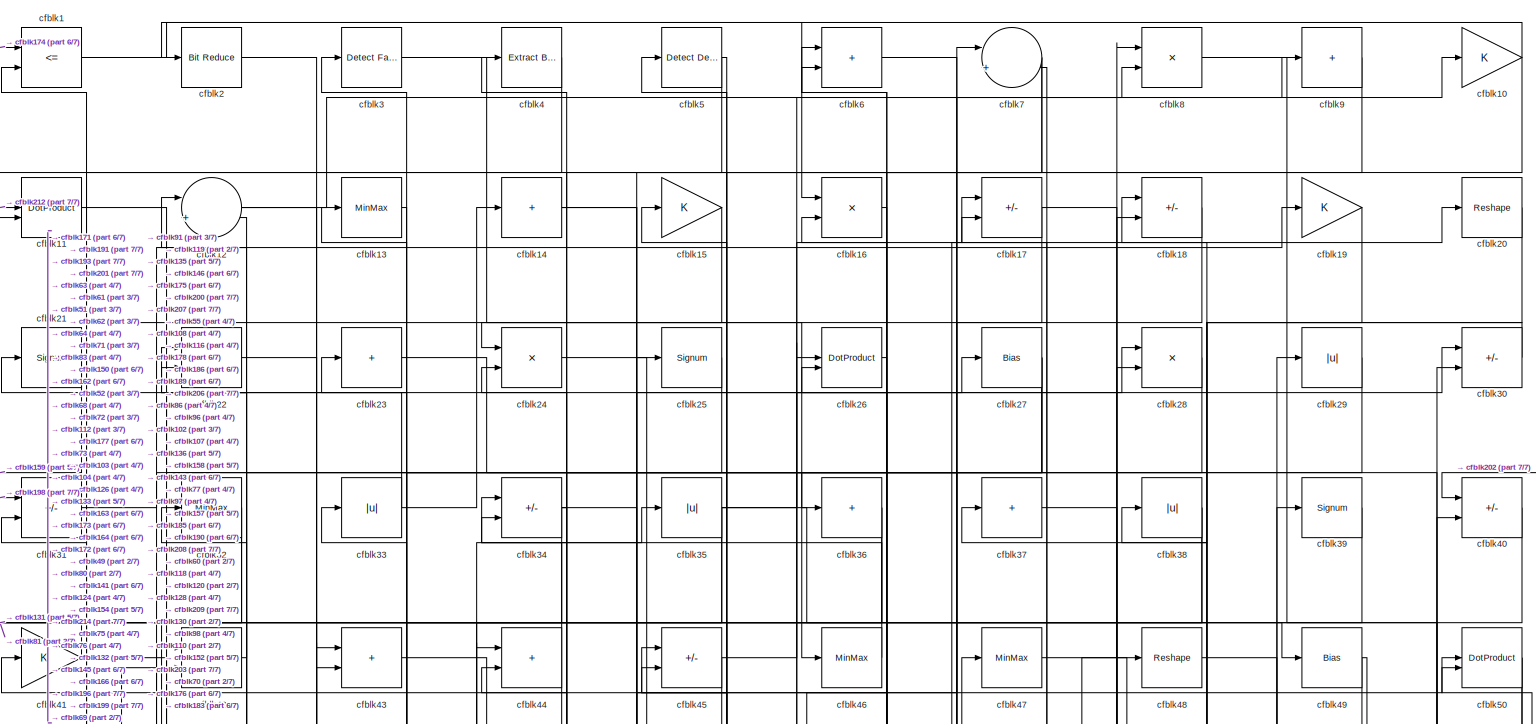
[diagram: root canvas - part 1/7, full width, top band]
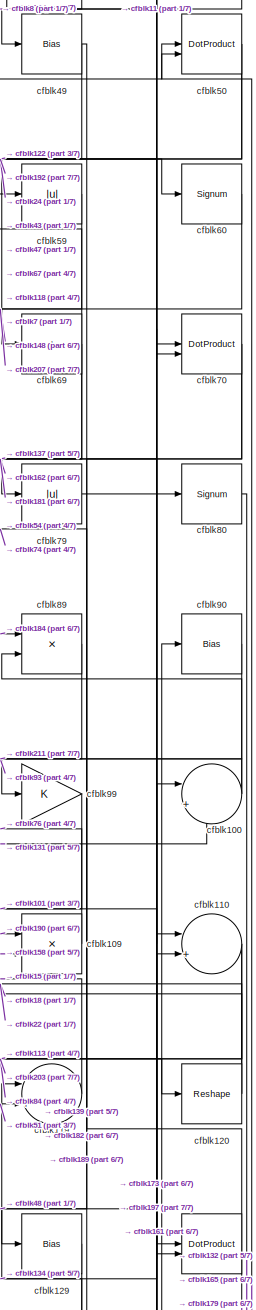
[diagram: root canvas - part 2/7, middle right region]
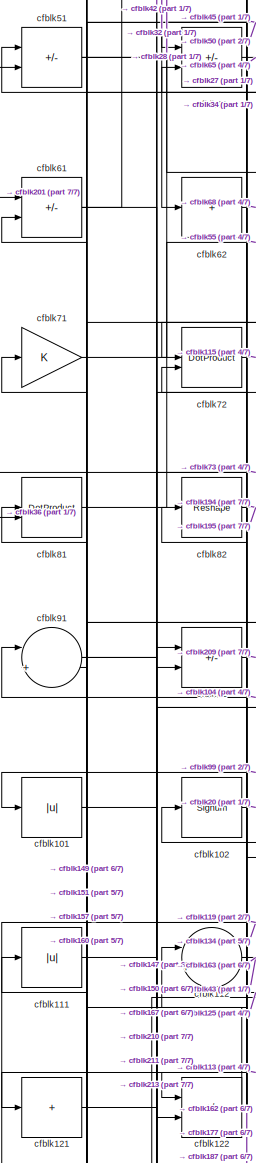
[diagram: root canvas - part 3/7, middle left region]
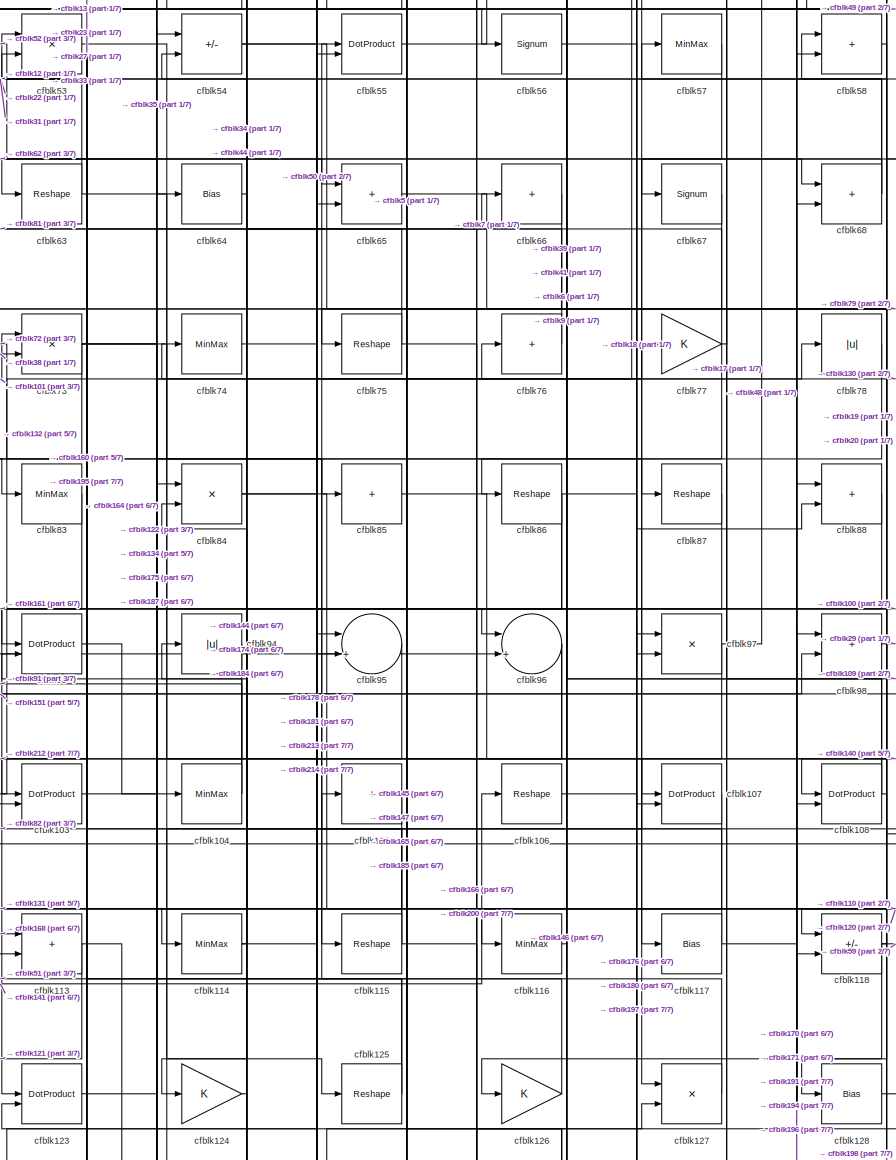
[diagram: root canvas - part 4/7, central region]
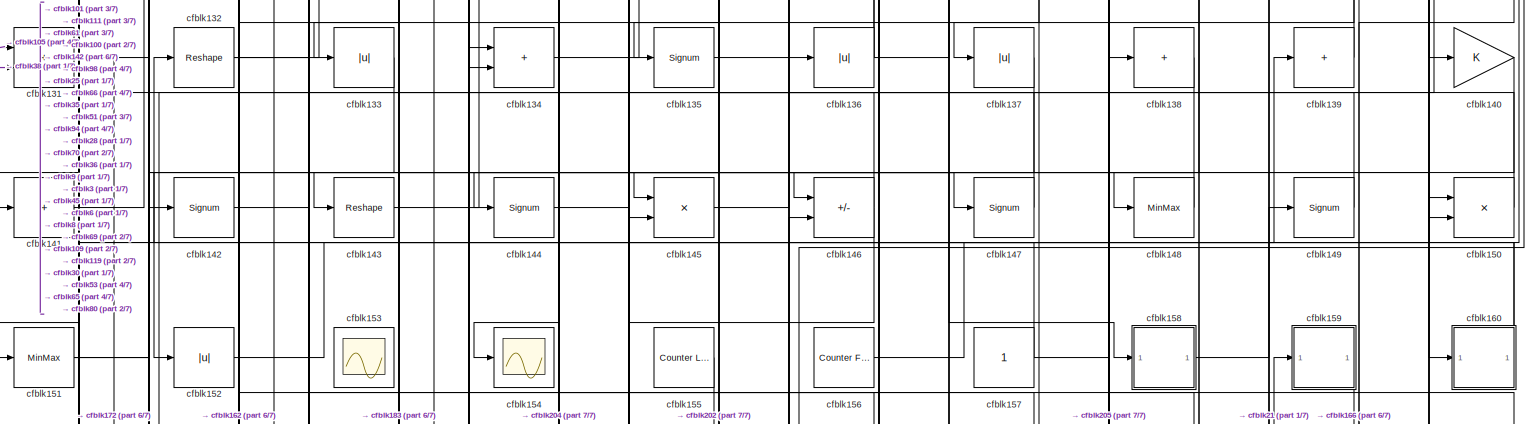
[diagram: root canvas - part 5/7, full width, middle band]
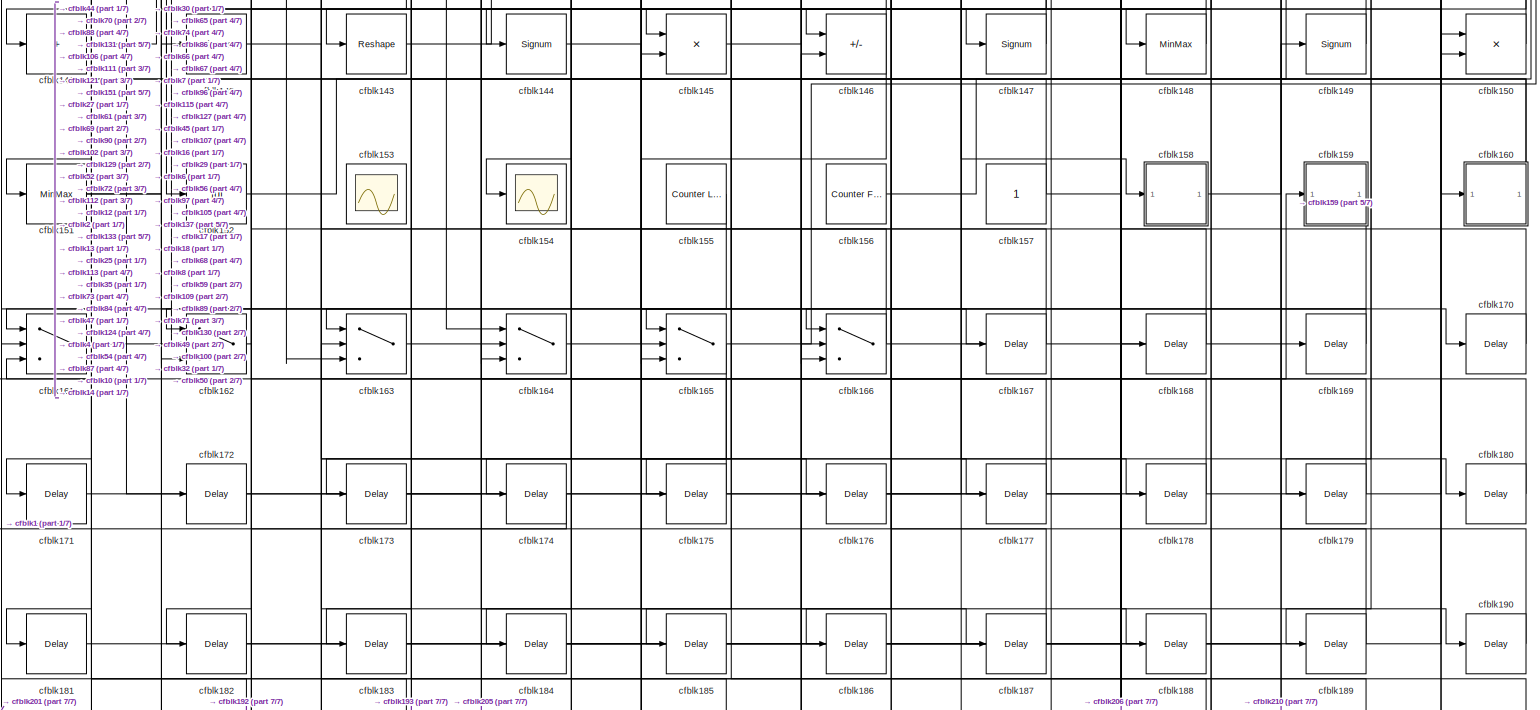
[diagram: root canvas - part 6/7, full width, bottom band]
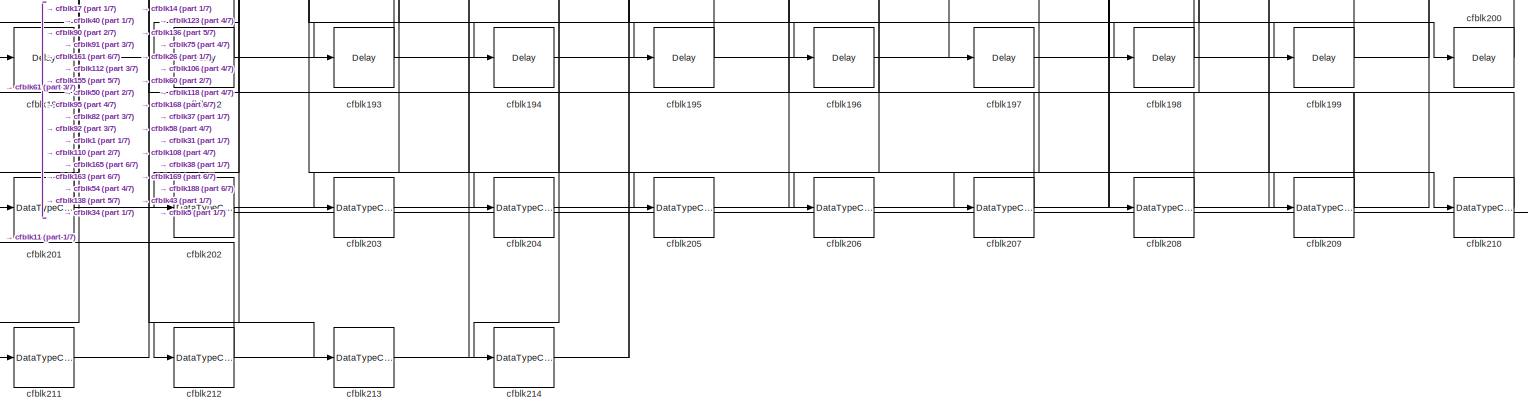
[diagram: root canvas - part 7/7, full width, bottom band]
MODEL slx_d8c4fedc67f1
KIND model
CONFIG AbsTol = auto
CONFIG EnableMultiTasking = off
CONFIG FixedStep = auto
CONFIG MaxStep = auto
CONFIG MinStep = auto
CONFIG RelTol = 1e-3
CONFIG SampleTimeConstraint = Unconstrained
CONFIG SolverName = VariableStepAuto
CONFIG StartTime = 0.0
CONFIG StopTime = 10.0
BLOCK [RelationalOperator] cfblk1
  InputSameDT = off
  Operator = <=
  OutDataTypeStr = boolean
BLOCK [Gain] cfblk10
BLOCK [Sum] cfblk100
  Inputs = |++
BLOCK [Abs] cfblk101
  SaturateOnIntegerOverflow = off
BLOCK [Signum] cfblk102
BLOCK [DotProduct] cfblk103
  OutDataTypeStr = Inherit: Inherit via internal rule
BLOCK [MinMax] cfblk104
BLOCK [Sum] cfblk105
  IconShape = rectangular
  Inputs = +
BLOCK [Reshape] cfblk106
BLOCK [DotProduct] cfblk107
  OutDataTypeStr = Inherit: Inherit via internal rule
BLOCK [DotProduct] cfblk108
  OutDataTypeStr = Inherit: Inherit via internal rule
BLOCK [Product] cfblk109
  Inputs = */
  RndMeth = Zero
  SaturateOnIntegerOverflow = on
BLOCK [DotProduct] cfblk11
  OutDataTypeStr = Inherit: Inherit via internal rule
BLOCK [Sum] cfblk110
  Inputs = |++
BLOCK [Abs] cfblk111
  SaturateOnIntegerOverflow = off
BLOCK [Sum] cfblk112
  Inputs = |++
BLOCK [Sum] cfblk113
  IconShape = rectangular
BLOCK [MinMax] cfblk114
BLOCK [Reshape] cfblk115
BLOCK [MinMax] cfblk116
BLOCK [Bias] cfblk117
  Bias = 0.0
  SaturateOnIntegerOverflow = off
BLOCK [Sum] cfblk118
  IconShape = rectangular
  Inputs = +-
BLOCK [Sum] cfblk119
  Inputs = |++
BLOCK [Sum] cfblk12
  Inputs = |++
BLOCK [Reshape] cfblk120
BLOCK [Sum] cfblk121
  IconShape = rectangular
  Inputs = +
BLOCK [Sum] cfblk122
  IconShape = rectangular
  Inputs = +-
BLOCK [DotProduct] cfblk123
  OutDataTypeStr = Inherit: Inherit via internal rule
BLOCK [Gain] cfblk124
BLOCK [Reshape] cfblk125
BLOCK [Gain] cfblk126
BLOCK [Product] cfblk127
  Inputs = */
  RndMeth = Zero
  SaturateOnIntegerOverflow = on
BLOCK [Bias] cfblk128
  Bias = 0.0
  SaturateOnIntegerOverflow = off
BLOCK [Bias] cfblk129
  Bias = 0.0
  SaturateOnIntegerOverflow = off
BLOCK [MinMax] cfblk13
BLOCK [DotProduct] cfblk130
  OutDataTypeStr = Inherit: Inherit via internal rule
BLOCK [Sum] cfblk131
  IconShape = rectangular
BLOCK [Reshape] cfblk132
BLOCK [Abs] cfblk133
  SaturateOnIntegerOverflow = off
BLOCK [Sum] cfblk134
  IconShape = rectangular
BLOCK [Signum] cfblk135
BLOCK [Abs] cfblk136
  SaturateOnIntegerOverflow = off
BLOCK [Abs] cfblk137
  SaturateOnIntegerOverflow = off
BLOCK [Sum] cfblk138
  IconShape = rectangular
  Inputs = +
BLOCK [Sum] cfblk139
  IconShape = rectangular
  Inputs = +
BLOCK [Sum] cfblk14
  IconShape = rectangular
  Inputs = +
BLOCK [Gain] cfblk140
BLOCK [Sum] cfblk141
  IconShape = rectangular
  Inputs = +
BLOCK [Signum] cfblk142
BLOCK [Reshape] cfblk143
BLOCK [Signum] cfblk144
BLOCK [Product] cfblk145
  Inputs = */
  RndMeth = Zero
  SaturateOnIntegerOverflow = on
BLOCK [Sum] cfblk146
  IconShape = rectangular
  Inputs = +-
BLOCK [Signum] cfblk147
BLOCK [MinMax] cfblk148
BLOCK [Signum] cfblk149
BLOCK [Gain] cfblk15
BLOCK [Product] cfblk150
  Inputs = */
  RndMeth = Zero
  SaturateOnIntegerOverflow = on
BLOCK [MinMax] cfblk151
BLOCK [Abs] cfblk152
  SaturateOnIntegerOverflow = off
BLOCK [Scope] cfblk153
  Floating = on
  NumInputPorts = 1
  ScopeSpecificationString = Simulink.scopes.TimeScopeBlockCfg('CurrentConfiguration', extmgr.ConfigurationSet(extmgr.Configuration('Core','General UI',true,'FigureColor',[0.156862745098039 0.156862745098039 0.156862745098039]),extmgr.Configuration('Core','Source UI',true),extmgr.Configuration('Sources','WiredSimulink',true,'DataLoggingVariableName','ScopeData1','DataLoggingSaveFormat','StructureWithTime','DataLoggingLimitDat...<+2713ch>
BLOCK [Scope] cfblk154
  Floating = off
  NumInputPorts = 1
  ScopeSpecificationString = Simulink.scopes.TimeScopeBlockCfg('CurrentConfiguration', extmgr.ConfigurationSet(extmgr.Configuration('Core','General UI',true),extmgr.Configuration('Core','Source UI',true),extmgr.Configuration('Sources','WiredSimulink',true,'DataLoggingVariableName','ScopeData2','DataLoggingSaveFormat','Array','DataLoggingLimitDataPoints',true,'DataLoggingDecimation','1'),extmgr.Configuration('Visuals','Time Do...<+868ch>
BLOCK [Reference] cfblk155  REF=hdlsllib/Sources/Counter
Limited
  SourceBlock = hdlsllib/Sources/Counter\nLimited
  SourceType = Counter Limited
BLOCK [Reference] cfblk156  REF=hdlsllib/Sources/Counter
Free-Running
  SourceBlock = hdlsllib/Sources/Counter\nFree-Running
  SourceType = Counter Free-Running
BLOCK [Constant] cfblk157
  SampleTime = -1
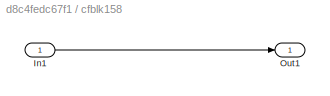
BLOCK [SubSystem] cfblk158
  LibrarySourceBlock = hdlsllib/Ports &\nSubsystems/Subsystem
BLOCK [Inport] cfblk158/In1
BLOCK [Outport] cfblk158/Out1
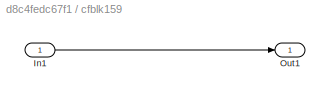
BLOCK [SubSystem] cfblk159
  LibrarySourceBlock = hdlsllib/Ports &\nSubsystems/Subsystem
BLOCK [Inport] cfblk159/In1
BLOCK [Outport] cfblk159/Out1
BLOCK [Product] cfblk16
  Inputs = */
  RndMeth = Zero
  SaturateOnIntegerOverflow = on
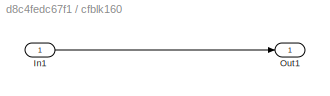
BLOCK [SubSystem] cfblk160
  LibrarySourceBlock = hdlsllib/Ports &\nSubsystems/Subsystem
BLOCK [Inport] cfblk160/In1
BLOCK [Outport] cfblk160/Out1
BLOCK [Switch] cfblk161
  InputSameDT = off
  SaturateOnIntegerOverflow = off
BLOCK [Switch] cfblk162
  InputSameDT = off
  SaturateOnIntegerOverflow = off
BLOCK [Switch] cfblk163
  InputSameDT = off
  SaturateOnIntegerOverflow = off
BLOCK [Switch] cfblk164
  InputSameDT = off
  SaturateOnIntegerOverflow = off
BLOCK [Switch] cfblk165
  InputSameDT = off
  SaturateOnIntegerOverflow = off
BLOCK [Switch] cfblk166
  InputSameDT = off
  SaturateOnIntegerOverflow = off
BLOCK [Delay] cfblk167
  InputPortMap = u0
  SampleTime = 1
BLOCK [Delay] cfblk168
  InputPortMap = u0
  SampleTime = 1
BLOCK [Delay] cfblk169
  InputPortMap = u0
  SampleTime = 1
BLOCK [Sum] cfblk17
  IconShape = rectangular
  Inputs = +-
BLOCK [Delay] cfblk170
  InputPortMap = u0
  SampleTime = 1
BLOCK [Delay] cfblk171
  InputPortMap = u0
  SampleTime = 1
BLOCK [Delay] cfblk172
  InputPortMap = u0
  SampleTime = 1
BLOCK [Delay] cfblk173
  InputPortMap = u0
  SampleTime = 1
BLOCK [Delay] cfblk174
  InputPortMap = u0
  SampleTime = 1
BLOCK [Delay] cfblk175
  InputPortMap = u0
  SampleTime = 1
BLOCK [Delay] cfblk176
  InputPortMap = u0
  SampleTime = 1
BLOCK [Delay] cfblk177
  InputPortMap = u0
  SampleTime = 1
BLOCK [Delay] cfblk178
  InputPortMap = u0
  SampleTime = 1
BLOCK [Delay] cfblk179
  InputPortMap = u0
  SampleTime = 1
BLOCK [Sum] cfblk18
  IconShape = rectangular
  Inputs = +-
BLOCK [Delay] cfblk180
  InputPortMap = u0
  SampleTime = 1
BLOCK [Delay] cfblk181
  InputPortMap = u0
  SampleTime = 1
BLOCK [Delay] cfblk182
  InputPortMap = u0
  SampleTime = 1
BLOCK [Delay] cfblk183
  InputPortMap = u0
  SampleTime = 1
BLOCK [Delay] cfblk184
  InputPortMap = u0
  SampleTime = 1
BLOCK [Delay] cfblk185
  InputPortMap = u0
  SampleTime = 1
BLOCK [Delay] cfblk186
  InputPortMap = u0
  SampleTime = 1
BLOCK [Delay] cfblk187
  InputPortMap = u0
  SampleTime = 1
BLOCK [Delay] cfblk188
  InputPortMap = u0
  SampleTime = 1
BLOCK [Delay] cfblk189
  InputPortMap = u0
  SampleTime = 1
BLOCK [Gain] cfblk19
BLOCK [Delay] cfblk190
  InputPortMap = u0
  SampleTime = 1
BLOCK [Delay] cfblk191
  InputPortMap = u0
  SampleTime = 1
BLOCK [Delay] cfblk192
  InputPortMap = u0
  SampleTime = 1
BLOCK [Delay] cfblk193
  InputPortMap = u0
  SampleTime = 1
BLOCK [Delay] cfblk194
  InputPortMap = u0
  SampleTime = 1
BLOCK [Delay] cfblk195
  InputPortMap = u0
  SampleTime = 1
BLOCK [Delay] cfblk196
  InputPortMap = u0
  SampleTime = 1
BLOCK [Delay] cfblk197
  InputPortMap = u0
  SampleTime = 1
BLOCK [Delay] cfblk198
  InputPortMap = u0
  SampleTime = 1
BLOCK [Delay] cfblk199
  InputPortMap = u0
  SampleTime = 1
BLOCK [Reference] cfblk2  REF=hdlsllib/Logic and Bit
Operations/Bit Reduce
  SourceBlock = hdlsllib/Logic and Bit\nOperations/Bit Reduce
  SourceType = Bit Reduce
BLOCK [Reshape] cfblk20
BLOCK [Delay] cfblk200
  InputPortMap = u0
  SampleTime = 1
BLOCK [DataTypeConversion] cfblk201
  RndMeth = Floor
  SaturateOnIntegerOverflow = off
BLOCK [DataTypeConversion] cfblk202
  OutDataTypeStr = uint8
  RndMeth = Floor
  SaturateOnIntegerOverflow = off
BLOCK [DataTypeConversion] cfblk203
  OutDataTypeStr = uint8
  RndMeth = Floor
  SaturateOnIntegerOverflow = off
BLOCK [DataTypeConversion] cfblk204
  OutDataTypeStr = uint8
  RndMeth = Floor
  SaturateOnIntegerOverflow = off
BLOCK [DataTypeConversion] cfblk205
  OutDataTypeStr = uint8
  RndMeth = Floor
  SaturateOnIntegerOverflow = off
BLOCK [DataTypeConversion] cfblk206
  OutDataTypeStr = uint8
  RndMeth = Floor
  SaturateOnIntegerOverflow = off
BLOCK [DataTypeConversion] cfblk207
  OutDataTypeStr = uint8
  RndMeth = Floor
  SaturateOnIntegerOverflow = off
BLOCK [DataTypeConversion] cfblk208
  OutDataTypeStr = uint8
  RndMeth = Floor
  SaturateOnIntegerOverflow = off
BLOCK [DataTypeConversion] cfblk209
  RndMeth = Floor
  SaturateOnIntegerOverflow = off
BLOCK [Signum] cfblk21
BLOCK [DataTypeConversion] cfblk210
  OutDataTypeStr = uint8
  RndMeth = Floor
  SaturateOnIntegerOverflow = off
BLOCK [DataTypeConversion] cfblk211
  OutDataTypeStr = uint8
  RndMeth = Floor
  SaturateOnIntegerOverflow = off
BLOCK [DataTypeConversion] cfblk212
  RndMeth = Floor
  SaturateOnIntegerOverflow = off
BLOCK [DataTypeConversion] cfblk213
  OutDataTypeStr = uint8
  RndMeth = Floor
  SaturateOnIntegerOverflow = off
BLOCK [DataTypeConversion] cfblk214
  OutDataTypeStr = uint8
  RndMeth = Floor
  SaturateOnIntegerOverflow = off
BLOCK [Product] cfblk22
  Inputs = */
  RndMeth = Zero
  SaturateOnIntegerOverflow = on
BLOCK [Sum] cfblk23
  IconShape = rectangular
  Inputs = +
BLOCK [Product] cfblk24
  Inputs = */
  RndMeth = Zero
  SaturateOnIntegerOverflow = on
BLOCK [Signum] cfblk25
BLOCK [DotProduct] cfblk26
  OutDataTypeStr = Inherit: Inherit via internal rule
BLOCK [Bias] cfblk27
  Bias = 0.0
  SaturateOnIntegerOverflow = off
BLOCK [Product] cfblk28
  Inputs = */
  RndMeth = Zero
  SaturateOnIntegerOverflow = on
BLOCK [Abs] cfblk29
  SaturateOnIntegerOverflow = off
BLOCK [Reference] cfblk3  REF=hdlsllib/Logic and Bit
Operations/Detect Fall
Negative
  SourceBlock = hdlsllib/Logic and Bit\nOperations/Detect Fall\nNegative
  SourceType = Detect Fall Negative
BLOCK [Sum] cfblk30
  IconShape = rectangular
  Inputs = +-
BLOCK [Sum] cfblk31
  IconShape = rectangular
  Inputs = +-
BLOCK [MinMax] cfblk32
BLOCK [Abs] cfblk33
  SaturateOnIntegerOverflow = off
BLOCK [Sum] cfblk34
  IconShape = rectangular
  Inputs = +-
BLOCK [Abs] cfblk35
  SaturateOnIntegerOverflow = off
BLOCK [Sum] cfblk36
  IconShape = rectangular
  Inputs = +
BLOCK [Sum] cfblk37
  IconShape = rectangular
  Inputs = +
BLOCK [Abs] cfblk38
  SaturateOnIntegerOverflow = off
BLOCK [Signum] cfblk39
BLOCK [Reference] cfblk4  REF=simulink/Logic and Bit
Operations/Extract Bits
  LibrarySourceBlock = hdlsllib/Logic and Bit\nOperations/Extract Bits
  SourceBlock = simulink/Logic and Bit\nOperations/Extract Bits
  SourceType = Extract Bits
BLOCK [Sum] cfblk40
  IconShape = rectangular
  Inputs = +-
BLOCK [Gain] cfblk41
BLOCK [Product] cfblk42
  Inputs = */
  RndMeth = Zero
  SaturateOnIntegerOverflow = on
BLOCK [Sum] cfblk43
  IconShape = rectangular
BLOCK [Sum] cfblk44
  IconShape = rectangular
BLOCK [Sum] cfblk45
  IconShape = rectangular
  Inputs = +-
BLOCK [MinMax] cfblk46
BLOCK [MinMax] cfblk47
BLOCK [Reshape] cfblk48
BLOCK [Bias] cfblk49
  Bias = 0.0
  SaturateOnIntegerOverflow = off
BLOCK [Reference] cfblk5  REF=simulink/Logic and Bit
Operations/Detect
Decrease
  LibrarySourceBlock = hdlsllib/Logic and Bit\nOperations/Detect\nDecrease
  SourceBlock = simulink/Logic and Bit\nOperations/Detect\nDecrease
  SourceType = Detect Decrease
BLOCK [DotProduct] cfblk50
  OutDataTypeStr = Inherit: Inherit via internal rule
BLOCK [Sum] cfblk51
  IconShape = rectangular
  Inputs = +-
BLOCK [Sum] cfblk52
  IconShape = rectangular
  Inputs = +-
BLOCK [Product] cfblk53
  Inputs = */
  RndMeth = Zero
  SaturateOnIntegerOverflow = on
BLOCK [Sum] cfblk54
  IconShape = rectangular
  Inputs = +-
BLOCK [DotProduct] cfblk55
  OutDataTypeStr = Inherit: Inherit via internal rule
BLOCK [Signum] cfblk56
BLOCK [MinMax] cfblk57
BLOCK [Sum] cfblk58
  IconShape = rectangular
BLOCK [Abs] cfblk59
  SaturateOnIntegerOverflow = off
BLOCK [Sum] cfblk6
  IconShape = rectangular
BLOCK [Signum] cfblk60
BLOCK [Sum] cfblk61
  IconShape = rectangular
  Inputs = +-
BLOCK [Sum] cfblk62
  IconShape = rectangular
  Inputs = +
BLOCK [Reshape] cfblk63
BLOCK [Bias] cfblk64
  Bias = 0.0
  SaturateOnIntegerOverflow = off
BLOCK [Sum] cfblk65
  IconShape = rectangular
BLOCK [Sum] cfblk66
  IconShape = rectangular
  Inputs = +
BLOCK [Signum] cfblk67
BLOCK [Sum] cfblk68
  IconShape = rectangular
BLOCK [Sum] cfblk69
  IconShape = rectangular
  Inputs = +
BLOCK [Sum] cfblk7
  Inputs = |++
BLOCK [DotProduct] cfblk70
  OutDataTypeStr = Inherit: Inherit via internal rule
BLOCK [Gain] cfblk71
BLOCK [DotProduct] cfblk72
  OutDataTypeStr = Inherit: Inherit via internal rule
BLOCK [Product] cfblk73
  Inputs = */
  RndMeth = Zero
  SaturateOnIntegerOverflow = on
BLOCK [MinMax] cfblk74
BLOCK [Reshape] cfblk75
BLOCK [Sum] cfblk76
  IconShape = rectangular
  Inputs = +
BLOCK [Gain] cfblk77
BLOCK [Abs] cfblk78
  SaturateOnIntegerOverflow = off
BLOCK [Abs] cfblk79
  SaturateOnIntegerOverflow = off
BLOCK [Product] cfblk8
  Inputs = */
  RndMeth = Zero
  SaturateOnIntegerOverflow = on
BLOCK [Signum] cfblk80
BLOCK [DotProduct] cfblk81
  OutDataTypeStr = Inherit: Inherit via internal rule
BLOCK [Reshape] cfblk82
BLOCK [MinMax] cfblk83
BLOCK [Product] cfblk84
  Inputs = */
  RndMeth = Zero
  SaturateOnIntegerOverflow = on
BLOCK [Sum] cfblk85
  IconShape = rectangular
  Inputs = +
BLOCK [Reshape] cfblk86
BLOCK [Reshape] cfblk87
BLOCK [Sum] cfblk88
  IconShape = rectangular
BLOCK [Product] cfblk89
  Inputs = */
  RndMeth = Zero
  SaturateOnIntegerOverflow = on
BLOCK [Sum] cfblk9
  IconShape = rectangular
  Inputs = +
BLOCK [Bias] cfblk90
  Bias = 0.0
  SaturateOnIntegerOverflow = off
BLOCK [Sum] cfblk91
  Inputs = |++
BLOCK [Sum] cfblk92
  IconShape = rectangular
  Inputs = +-
BLOCK [DotProduct] cfblk93
  OutDataTypeStr = Inherit: Inherit via internal rule
BLOCK [Abs] cfblk94
  SaturateOnIntegerOverflow = off
BLOCK [Sum] cfblk95
  Inputs = |++
BLOCK [Sum] cfblk96
  Inputs = |++
BLOCK [Product] cfblk97
  Inputs = */
  RndMeth = Zero
  SaturateOnIntegerOverflow = on
BLOCK [Sum] cfblk98
  IconShape = rectangular
BLOCK [Gain] cfblk99
NET cfblk100:1 -> cfblk89:2, cfblk93:1
NET cfblk101:1 -> cfblk151:1, cfblk73:1
LINE cfblk102:1 -> cfblk20:1
LINE cfblk103:1 -> cfblk35:1
NET cfblk104:1 -> cfblk13:1, cfblk91:1
LINE cfblk105:1 -> cfblk131:1
LINE cfblk106:1 -> cfblk197:1
LINE cfblk107:1 -> cfblk146:1
NET cfblk108:1 -> cfblk198:1, cfblk41:1, cfblk57:1
LINE cfblk109:1 -> cfblk76:1
NET cfblk10:1 -> cfblk145:2, cfblk2:1
NET cfblk110:1 -> cfblk113:2, cfblk203:1
LINE cfblk111:1 -> cfblk147:1
NET cfblk112:1 -> cfblk163:3, cfblk43:2
NET cfblk113:1 -> cfblk121:1, cfblk164:1
NET cfblk114:1 -> cfblk77:1, cfblk94:1
NET cfblk115:1 -> cfblk166:2, cfblk82:1, cfblk84:2
LINE cfblk116:1 -> cfblk6:1
NET cfblk117:1 -> cfblk53:1, cfblk98:1
NET cfblk118:1 -> cfblk126:1, cfblk58:1, cfblk59:1
LINE cfblk119:1 -> cfblk15:1
LINE cfblk11:1 -> cfblk70:2
NET cfblk120:1 -> cfblk18:1, cfblk22:2
LINE cfblk121:1 -> cfblk167:1
LINE cfblk122:1 -> cfblk81:1
LINE cfblk123:1 -> cfblk78:1
LINE cfblk124:1 -> cfblk174:1
NET cfblk125:1 -> cfblk51:1, cfblk93:2
LINE cfblk126:1 -> cfblk33:1
LINE cfblk127:1 -> cfblk55:1
LINE cfblk128:1 -> cfblk39:1
LINE cfblk129:1 -> cfblk182:1
NET cfblk12:1 -> cfblk10:1, cfblk177:1
NET cfblk130:1 -> cfblk179:1, cfblk74:1
NET cfblk131:1 -> cfblk100:2, cfblk172:1
NET cfblk132:1 -> cfblk25:1, cfblk66:1
LINE cfblk133:1 -> cfblk162:1
LINE cfblk134:1 -> cfblk70:1
LINE cfblk135:1 -> cfblk9:1
NET cfblk136:1 -> cfblk3:1, cfblk45:2, cfblk8:2
LINE cfblk137:1 -> cfblk183:1
LINE cfblk138:1 -> cfblk204:1
LINE cfblk139:1 -> cfblk119:1
LINE cfblk13:1 -> cfblk173:1
LINE cfblk140:1 -> cfblk152:1
LINE cfblk141:1 -> cfblk106:1
LINE cfblk142:1 -> cfblk188:1
LINE cfblk143:1 -> cfblk47:1
LINE cfblk144:1 -> cfblk170:1
LINE cfblk145:1 -> cfblk127:2
NET cfblk146:1 -> cfblk165:2, cfblk45:1
LINE cfblk147:1 -> cfblk105:1
LINE cfblk148:1 -> cfblk143:1
LINE cfblk149:1 -> cfblk71:1
NET cfblk14:1 -> cfblk166:3, cfblk199:1
LINE cfblk150:1 -> cfblk32:1
NET cfblk151:1 -> cfblk142:1, cfblk98:2
LINE cfblk152:1 -> cfblk30:2
LINE cfblk155:1 -> cfblk202:1
LINE cfblk156:1 -> cfblk139:1
NET cfblk157:1 -> cfblk28:2, cfblk61:2
LINE cfblk158/In1:1 -> cfblk158/Out1:1
LINE cfblk158:1 -> cfblk109:2
LINE cfblk159/In1:1 -> cfblk159/Out1:1
LINE cfblk159:1 -> cfblk166:1
LINE cfblk15:1 -> cfblk24:1
LINE cfblk160/In1:1 -> cfblk160/Out1:1
NET cfblk160:1 -> cfblk111:1, cfblk53:2
LINE cfblk161:1 -> cfblk90:1
LINE cfblk162:1 -> cfblk102:1
LINE cfblk163:1 -> cfblk205:1
LINE cfblk164:1 -> cfblk30:1
NET cfblk165:1 -> cfblk193:1, cfblk50:1
NET cfblk166:1 -> cfblk149:1, cfblk4:1
LINE cfblk167:1 -> cfblk112:2
LINE cfblk168:1 -> cfblk113:1
LINE cfblk169:1 -> cfblk161:2
LINE cfblk16:1 -> cfblk36:1
LINE cfblk170:1 -> cfblk88:1
LINE cfblk171:1 -> cfblk68:2
LINE cfblk172:1 -> cfblk44:1
LINE cfblk173:1 -> cfblk100:1
LINE cfblk174:1 -> cfblk1:1
LINE cfblk175:1 -> cfblk84:1
LINE cfblk176:1 -> cfblk97:1
LINE cfblk177:1 -> cfblk52:2
LINE cfblk178:1 -> cfblk16:2
LINE cfblk179:1 -> cfblk163:2
NET cfblk17:1 -> cfblk190:1, cfblk191:1
LINE cfblk180:1 -> cfblk54:2
LINE cfblk181:1 -> cfblk65:2
LINE cfblk182:1 -> cfblk146:2
LINE cfblk183:1 -> cfblk8:1
LINE cfblk184:1 -> cfblk89:1
LINE cfblk185:1 -> cfblk18:2
LINE cfblk186:1 -> cfblk150:1
LINE cfblk187:1 -> cfblk72:2
LINE cfblk188:1 -> cfblk210:1
LINE cfblk189:1 -> cfblk6:2
LINE cfblk18:1 -> cfblk97:2
LINE cfblk190:1 -> cfblk109:1
LINE cfblk191:1 -> cfblk118:2
LINE cfblk192:1 -> cfblk161:3
LINE cfblk193:1 -> cfblk1:2
LINE cfblk194:1 -> cfblk58:2
LINE cfblk195:1 -> cfblk123:2
LINE cfblk196:1 -> cfblk108:2
LINE cfblk197:1 -> cfblk110:2
LINE cfblk198:1 -> cfblk31:1
LINE cfblk199:1 -> cfblk43:1
LINE cfblk19:1 -> cfblk118:1
LINE cfblk1:1 -> cfblk16:1
LINE cfblk200:1 -> cfblk5:1
NET cfblk201:1 -> cfblk169:1, cfblk61:1
LINE cfblk202:1 -> cfblk40:1
LINE cfblk203:1 -> cfblk40:2
LINE cfblk204:1 -> cfblk136:1
LINE cfblk205:1 -> cfblk138:1
LINE cfblk206:1 -> cfblk168:1
LINE cfblk207:1 -> cfblk26:1
LINE cfblk208:1 -> cfblk26:2
NET cfblk209:1 -> cfblk112:1, cfblk38:1
LINE cfblk20:1 -> cfblk128:1
LINE cfblk210:1 -> cfblk92:1
LINE cfblk211:1 -> cfblk92:2
NET cfblk212:1 -> cfblk11:1, cfblk54:1
LINE cfblk213:1 -> cfblk95:1
LINE cfblk214:1 -> cfblk95:2
LINE cfblk21:1 -> cfblk159:1
LINE cfblk22:1 -> cfblk96:2
LINE cfblk23:1 -> cfblk107:2
LINE cfblk24:1 -> cfblk69:1
LINE cfblk25:1 -> cfblk163:1
LINE cfblk26:1 -> cfblk206:1
NET cfblk27:1 -> cfblk103:1, cfblk162:3, cfblk52:1
LINE cfblk28:1 -> cfblk154:1
LINE cfblk29:1 -> cfblk186:1
LINE cfblk2:1 -> cfblk176:1
LINE cfblk30:1 -> cfblk37:1
LINE cfblk31:1 -> cfblk19:1
NET cfblk32:1 -> cfblk51:2, cfblk62:1
NET cfblk33:1 -> cfblk14:1, cfblk21:1
NET cfblk34:1 -> cfblk196:1, cfblk214:1, cfblk72:1
NET cfblk35:1 -> cfblk133:1, cfblk164:2, cfblk17:2, cfblk49:1
NET cfblk36:1 -> cfblk135:1, cfblk81:2
LINE cfblk37:1 -> cfblk208:1
NET cfblk38:1 -> cfblk131:2, cfblk73:2
LINE cfblk39:1 -> cfblk96:1
LINE cfblk3:1 -> cfblk46:1
LINE cfblk40:1 -> cfblk201:1
NET cfblk41:1 -> cfblk64:1, cfblk83:1
LINE cfblk42:1 -> cfblk12:1
LINE cfblk43:1 -> cfblk80:1
NET cfblk44:1 -> cfblk141:1, cfblk34:1
NET cfblk45:1 -> cfblk27:1, cfblk91:2
LINE cfblk46:1 -> cfblk24:2
LINE cfblk47:1 -> cfblk60:1
LINE cfblk48:1 -> cfblk130:2
NET cfblk49:1 -> cfblk189:1, cfblk67:1
LINE cfblk4:1 -> cfblk171:1
NET cfblk50:1 -> cfblk122:1, cfblk192:1
NET cfblk51:1 -> cfblk119:2, cfblk134:1
LINE cfblk52:1 -> cfblk65:1
LINE cfblk53:1 -> cfblk140:1
NET cfblk54:1 -> cfblk56:1, cfblk79:1
LINE cfblk55:1 -> cfblk7:1
LINE cfblk56:1 -> cfblk180:1
LINE cfblk57:1 -> cfblk127:1
LINE cfblk58:1 -> cfblk108:1
LINE cfblk59:1 -> cfblk148:1
NET cfblk5:1 -> cfblk11:2, cfblk75:1
LINE cfblk60:1 -> cfblk207:1
NET cfblk61:1 -> cfblk150:2, cfblk42:2
LINE cfblk62:1 -> cfblk68:1
NET cfblk63:1 -> cfblk31:2, cfblk87:1
LINE cfblk64:1 -> cfblk114:1
LINE cfblk65:1 -> cfblk160:1
LINE cfblk66:1 -> cfblk165:1
LINE cfblk67:1 -> cfblk145:1
NET cfblk68:1 -> cfblk12:2, cfblk22:1, cfblk63:1
NET cfblk69:1 -> cfblk137:1, cfblk162:2, cfblk7:2
LINE cfblk6:1 -> cfblk158:1
NET cfblk70:1 -> cfblk129:1, cfblk181:1
LINE cfblk71:1 -> cfblk28:1
LINE cfblk72:1 -> cfblk115:1
NET cfblk73:1 -> cfblk122:2, cfblk125:1, cfblk187:1, cfblk85:1
LINE cfblk74:1 -> cfblk178:1
NET cfblk75:1 -> cfblk200:1, cfblk34:2
LINE cfblk76:1 -> cfblk44:2
NET cfblk77:1 -> cfblk103:2, cfblk17:1, cfblk23:1
LINE cfblk78:1 -> cfblk116:1
LINE cfblk79:1 -> cfblk130:1
NET cfblk7:1 -> cfblk124:1, cfblk175:1
LINE cfblk80:1 -> cfblk132:1
LINE cfblk81:1 -> cfblk55:2
NET cfblk82:1 -> cfblk194:1, cfblk195:1
LINE cfblk83:1 -> cfblk123:1
NET cfblk84:1 -> cfblk120:1, cfblk50:2
LINE cfblk85:1 -> cfblk117:1
NET cfblk86:1 -> cfblk164:3, cfblk165:3, cfblk88:2
LINE cfblk87:1 -> cfblk144:1
LINE cfblk88:1 -> cfblk161:1
LINE cfblk89:1 -> cfblk99:1
LINE cfblk8:1 -> cfblk110:1
LINE cfblk90:1 -> cfblk211:1
NET cfblk91:1 -> cfblk213:1, cfblk42:1
LINE cfblk92:1 -> cfblk209:1
LINE cfblk93:1 -> cfblk104:1
LINE cfblk94:1 -> cfblk134:2
LINE cfblk95:1 -> cfblk212:1
NET cfblk96:1 -> cfblk184:1, cfblk185:1
NET cfblk97:1 -> cfblk107:1, cfblk48:1
LINE cfblk98:1 -> cfblk29:1
LINE cfblk99:1 -> cfblk101:1
LINE cfblk9:1 -> cfblk86:1
note: NET lines group one-source signal fan-out (src -> all destinations, sorted); 1:1 wires keep LINE
